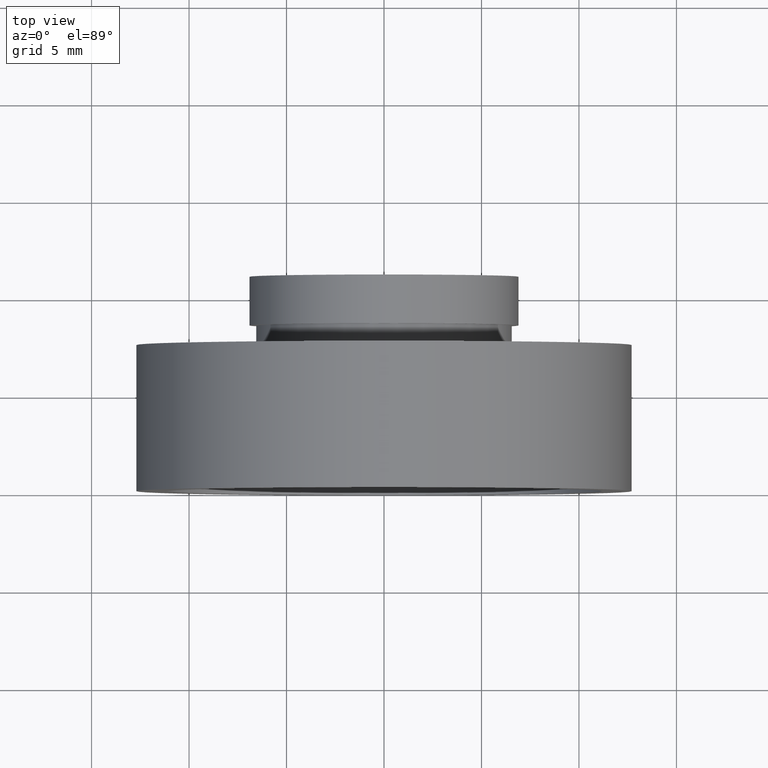
[diagram: clean part render]
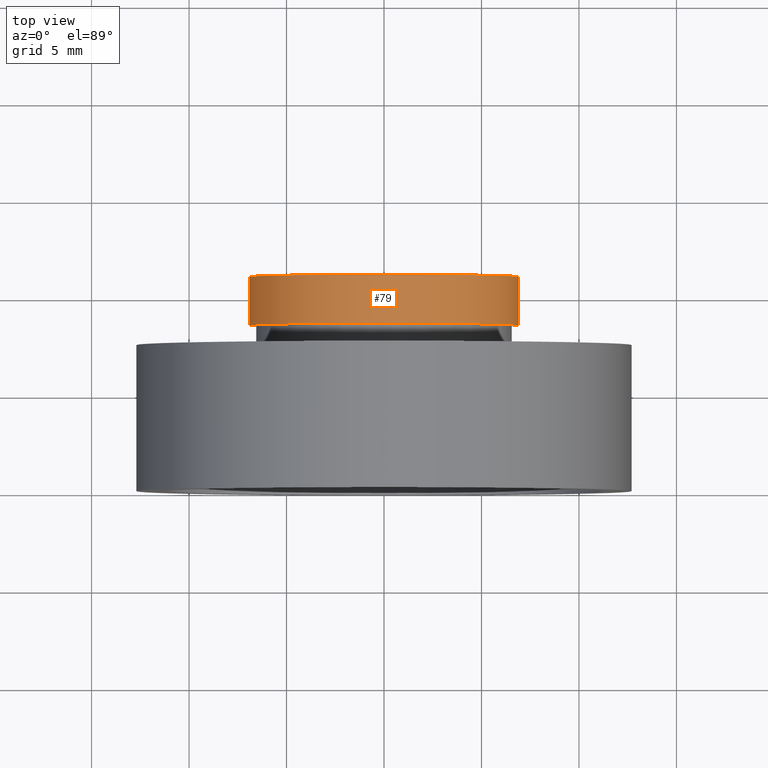
[diagram: same view with one face highlighted and labeled with its STEP entity id]
A machine part, top view. The second image highlights one B-rep face of the part: STEP entity #79.
In plain terms, the highlighted cylindrical surface (partial cylindrical patch) has radius 6.9 mm, axis along (-0, 1, -0).
Its self-contained STEP definition (entity closure, byte-faithful):
#9 = DIRECTION ( 'NONE',  ( -1.000000000000000000, 0.0000000000000000000, 0.0000000000000000000 ) ) ;
#19 = FACE_OUTER_BOUND ( 'NONE', #597, .T. ) ;
#56 = VECTOR ( 'NONE', #132, 1000.000000000000000 ) ;
#79 = ADVANCED_FACE ( 'NONE', ( #19 ), #371, .T. ) ;
#97 = DIRECTION ( 'NONE',  ( -1.000000000000000000, 0.0000000000000000000, 0.0000000000000000000 ) ) ;
#103 = VERTEX_POINT ( 'NONE', #365 ) ;
#106 = CARTESIAN_POINT ( 'NONE',  ( 0.0000000000000000000, 16.88601823708207700, 0.0000000000000000000 ) ) ;
#118 = CARTESIAN_POINT ( 'NONE',  ( -6.900000000000001200, 16.88601823708207700, 0.0000000000000000000 ) ) ;
#130 = VECTOR ( 'NONE', #315, 1000.000000000000000 ) ;
#132 = DIRECTION ( 'NONE',  ( -1.224646799147351000E-016, 1.000000000000000000, -0.0000000000000000000 ) ) ;
#145 = ORIENTED_EDGE ( 'NONE', *, *, #381, .F. ) ;
#151 = ORIENTED_EDGE ( 'NONE', *, *, #203, .T. ) ;
#155 = DIRECTION ( 'NONE',  ( -1.224646799147351000E-016, 1.000000000000000000, -0.0000000000000000000 ) ) ;
#168 = EDGE_CURVE ( 'NONE', #312, #103, #288, .T. ) ;
#196 = DIRECTION ( 'NONE',  ( -1.000000000000000000, 0.0000000000000000000, 0.0000000000000000000 ) ) ;
#203 = EDGE_CURVE ( 'NONE', #103, #451, #227, .T. ) ;
#227 = LINE ( 'NONE', #579, #130 ) ;
#267 = VERTEX_POINT ( 'NONE', #594 ) ;
#288 = CIRCLE ( 'NONE', #415, 6.900000000000000400 ) ;
#312 = VERTEX_POINT ( 'NONE', #416 ) ;
#315 = DIRECTION ( 'NONE',  ( -1.224646799147351000E-016, 1.000000000000000000, -0.0000000000000000000 ) ) ;
#321 = EDGE_CURVE ( 'NONE', #312, #267, #531, .T. ) ;
#341 = ORIENTED_EDGE ( 'NONE', *, *, #168, .T. ) ;
#362 = DIRECTION ( 'NONE',  ( -1.224646799147351000E-016, 1.000000000000000000, -0.0000000000000000000 ) ) ;
#365 = CARTESIAN_POINT ( 'NONE',  ( 6.900000000000001200, 8.500000000000000000, 8.450062914116738600E-016 ) ) ;
#371 = CYLINDRICAL_SURFACE ( 'NONE', #390, 6.900000000000001200 ) ;
#381 = EDGE_CURVE ( 'NONE', #267, #451, #567, .T. ) ;
#384 = CARTESIAN_POINT ( 'NONE',  ( 6.900000000000002100, 10.99999999999999600, 8.450062914116738600E-016 ) ) ;
#390 = AXIS2_PLACEMENT_3D ( 'NONE', #106, #155, #97 ) ;
#400 = AXIS2_PLACEMENT_3D ( 'NONE', #468, #608, #196 ) ;
#415 = AXIS2_PLACEMENT_3D ( 'NONE', #443, #362, #9 ) ;
#416 = CARTESIAN_POINT ( 'NONE',  ( -6.899999999999999500, 8.500000000000000000, 0.0000000000000000000 ) ) ;
#443 = CARTESIAN_POINT ( 'NONE',  ( 1.026991039163387500E-015, 8.500000000000000000, 0.0000000000000000000 ) ) ;
#451 = VERTEX_POINT ( 'NONE', #384 ) ;
#468 = CARTESIAN_POINT ( 'NONE',  ( 7.208293393765501500E-016, 10.99999999999999600, 0.0000000000000000000 ) ) ;
#531 = LINE ( 'NONE', #118, #56 ) ;
#567 = CIRCLE ( 'NONE', #400, 6.900000000000001200 ) ;
#579 = CARTESIAN_POINT ( 'NONE',  ( 6.900000000000001200, 16.88601823708207700, 8.450062914116738600E-016 ) ) ;
#594 = CARTESIAN_POINT ( 'NONE',  ( -6.900000000000000400, 10.99999999999999600, 0.0000000000000000000 ) ) ;
#597 = EDGE_LOOP ( 'NONE', ( #341, #151, #145, #616 ) ) ;
#608 = DIRECTION ( 'NONE',  ( -1.224646799147351000E-016, 1.000000000000000000, -0.0000000000000000000 ) ) ;
#616 = ORIENTED_EDGE ( 'NONE', *, *, #321, .F. ) ;